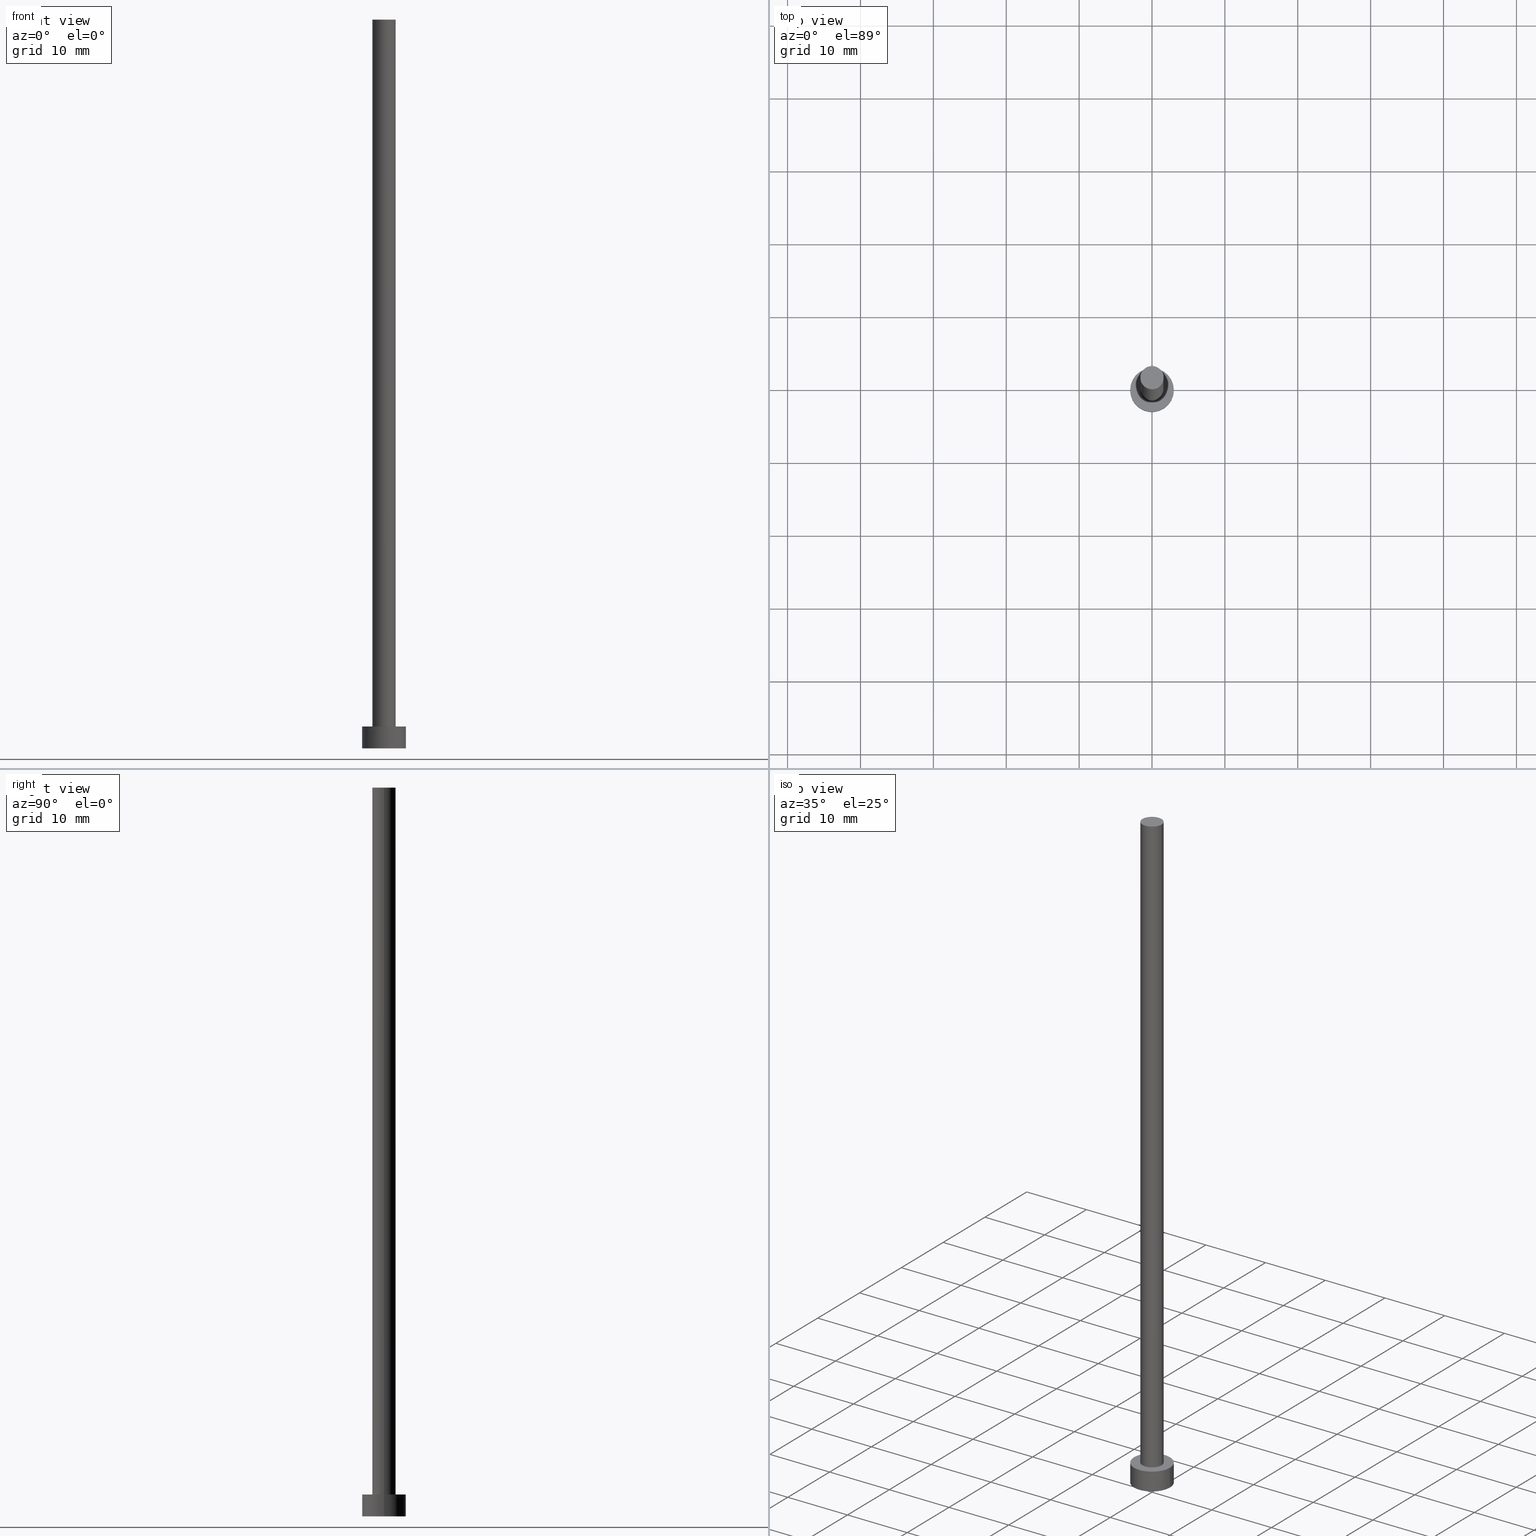
[diagram: canonical four-view strip — front | top / right | iso, engineering-drawing reading convention]
A machine part, canonical four-view strip (front | top / right | iso — engineering-drawing reading convention). The complete STEP part file that produces these views, byte-faithful:
ISO-10303-21;
HEADER;
FILE_DESCRIPTION (( 'STEP AP203' ),
    '1' );
FILE_NAME ('37a4.STEP',
    '2023-02-13T16:26:03',
    ( '' ),
    ( '' ),
    'SwSTEP 2.0',
    'SolidWorks 2019',
    '' );
FILE_SCHEMA (( 'CONFIG_CONTROL_DESIGN' ));
ENDSEC;

DATA;
#1 = APPROVAL_PERSON_ORGANIZATION ( #247, #146, #121 ) ;
#2 = DATE_AND_TIME ( #46, #10 ) ;
#3 = COORDINATED_UNIVERSAL_TIME_OFFSET ( 1, 0, .AHEAD. ) ;
#4 = EDGE_CURVE ( 'NONE', #70, #14, #220, .T. ) ;
#5 = LOCAL_TIME ( 17, 26, 3.000000000000000000, #7 ) ;
#6 = DIRECTION ( 'NONE',  ( 1.000000000000000000, 0.000000000000000000, 0.000000000000000000 ) ) ;
#7 = COORDINATED_UNIVERSAL_TIME_OFFSET ( 1, 0, .AHEAD. ) ;
#8 = EDGE_LOOP ( 'NONE', ( #102, #66, #67, #204 ) ) ;
#9 = ORIENTED_EDGE ( 'NONE', *, *, #4, .T. ) ;
#10 = LOCAL_TIME ( 17, 26, 3.000000000000000000, #3 ) ;
#11 = APPROVAL_STATUS ( 'not_yet_approved' ) ;
#12 = CARTESIAN_POINT ( 'NONE',  ( -3.000000000000000444, 0.000000000000000000, 0.000000000000000000 ) ) ;
#13 = APPLICATION_CONTEXT ( 'configuration controlled 3d designs of mechanical parts and assemblies' ) ;
#14 = VERTEX_POINT ( 'NONE', #197 ) ;
#15 = DIRECTION ( 'NONE',  ( 1.000000000000000000, 0.000000000000000000, 0.000000000000000000 ) ) ;
#16 = CARTESIAN_POINT ( 'NONE',  ( 0.000000000000000000, 0.000000000000000000, 3.000000000000000000 ) ) ;
#17 = CIRCLE ( 'NONE', #30, 3.000000000000000444 ) ;
#18 = APPLICATION_PROTOCOL_DEFINITION ( 'international standard', 'config_control_design', 1994, #13 ) ;
#19 = PRODUCT_DEFINITION_SHAPE ( 'NONE', 'NONE',  #241 ) ;
#20 = CARTESIAN_POINT ( 'NONE',  ( 1.600000000000000089, 1.959434878635764737E-16, 3.000000000000000000 ) ) ;
#21 = CARTESIAN_POINT ( 'NONE',  ( 0.000000000000000000, 0.000000000000000000, 100.0000000000000000 ) ) ;
#22 = AXIS2_PLACEMENT_3D ( 'NONE', #215, #185, #73 ) ;
#23 = CC_DESIGN_SECURITY_CLASSIFICATION ( #151, ( #56 ) ) ;
#24 = CC_DESIGN_PERSON_AND_ORGANIZATION_ASSIGNMENT ( #81, #172, ( #245 ) ) ;
#25 = DATE_AND_TIME ( #216, #5 ) ;
#26 = PERSON_AND_ORGANIZATION_ROLE ( 'classification_officer' ) ;
#27 = CIRCLE ( 'NONE', #89, 3.000000000000000444 ) ;
#28 = APPROVAL_PERSON_ORGANIZATION ( #237, #74, #94 ) ;
#29 = DIRECTION ( 'NONE',  ( 1.000000000000000000, 0.000000000000000000, -0.000000000000000000 ) ) ;
#30 = AXIS2_PLACEMENT_3D ( 'NONE', #62, #141, #232 ) ;
#31 = ORIENTED_EDGE ( 'NONE', *, *, #248, .T. ) ;
#32 = CC_DESIGN_PERSON_AND_ORGANIZATION_ASSIGNMENT ( #65, #133, ( #56 ) ) ;
#33 = MANIFOLD_SOLID_BREP ( 'P�idat vysunut�m3', #109 ) ;
#34 = ORIENTED_EDGE ( 'NONE', *, *, #124, .T. ) ;
#35 = EDGE_LOOP ( 'NONE', ( #193, #116 ) ) ;
#36 = EDGE_CURVE ( 'NONE', #155, #243, #27, .T. ) ;
#37 = DATE_TIME_ROLE ( 'classification_date' ) ;
#38 = CARTESIAN_POINT ( 'NONE',  ( -1.600000000000000089, 0.000000000000000000, 100.0000000000000000 ) ) ;
#39 = AXIS2_PLACEMENT_3D ( 'NONE', #55, #119, #205 ) ;
#40 = DIRECTION ( 'NONE',  ( -0.000000000000000000, -0.000000000000000000, -1.000000000000000000 ) ) ;
#41 = VECTOR ( 'NONE', #48, 1000.000000000000000 ) ;
#42 = ADVANCED_FACE ( 'NONE', ( #82 ), #240, .T. ) ;
#43 = APPROVAL_PERSON_ORGANIZATION ( #78, #131, #176 ) ;
#44 = DESIGN_CONTEXT ( 'detailed design', #203, 'design' ) ;
#45 = APPROVAL_DATE_TIME ( #25, #131 ) ;
#46 = CALENDAR_DATE ( 2023, 13, 2 ) ;
#47 = APPROVAL_DATE_TIME ( #2, #74 ) ;
#48 = DIRECTION ( 'NONE',  ( -0.000000000000000000, -0.000000000000000000, -1.000000000000000000 ) ) ;
#49 = APPROVAL_STATUS ( 'not_yet_approved' ) ;
#50 = DIRECTION ( 'NONE',  ( 0.000000000000000000, 0.000000000000000000, 1.000000000000000000 ) ) ;
#51 = DIRECTION ( 'NONE',  ( -0.000000000000000000, -0.000000000000000000, -1.000000000000000000 ) ) ;
#52 = ORIENTED_EDGE ( 'NONE', *, *, #224, .T. ) ;
#53 = ADVANCED_FACE ( 'NONE', ( #189 ), #250, .T. ) ;
#54 = VERTEX_POINT ( 'NONE', #20 ) ;
#55 = CARTESIAN_POINT ( 'NONE',  ( 0.000000000000000000, 0.000000000000000000, 3.000000000000000000 ) ) ;
#56 = PRODUCT_DEFINITION_FORMATION_WITH_SPECIFIED_SOURCE ( 'LIBOVOLN�', '', #245, .NOT_KNOWN. ) ;
#57 = CARTESIAN_POINT ( 'NONE',  ( 0.000000000000000000, 0.000000000000000000, 0.000000000000000000 ) ) ;
#58 = LINE ( 'NONE', #192, #201 ) ;
#59 = AXIS2_PLACEMENT_3D ( 'NONE', #184, #93, #138 ) ;
#60 = DIRECTION ( 'NONE',  ( 0.000000000000000000, 0.000000000000000000, 1.000000000000000000 ) ) ;
#61 = DIRECTION ( 'NONE',  ( -0.000000000000000000, -0.000000000000000000, -1.000000000000000000 ) ) ;
#62 = CARTESIAN_POINT ( 'NONE',  ( 0.000000000000000000, 0.000000000000000000, 3.000000000000000000 ) ) ;
#63 = CARTESIAN_POINT ( 'NONE',  ( 3.000000000000000444, 3.673940397442060361E-16, 0.000000000000000000 ) ) ;
#64 = AXIS2_PLACEMENT_3D ( 'NONE', #135, #51, #178 ) ;
#65 = PERSON_AND_ORGANIZATION ( #180, #144 ) ;
#66 = ORIENTED_EDGE ( 'NONE', *, *, #255, .T. ) ;
#67 = ORIENTED_EDGE ( 'NONE', *, *, #104, .T. ) ;
#68 = CIRCLE ( 'NONE', #59, 1.600000000000000089 ) ;
#69 = ORIENTED_EDGE ( 'NONE', *, *, #4, .F. ) ;
#70 = VERTEX_POINT ( 'NONE', #38 ) ;
#71 = APPROVAL_DATE_TIME ( #159, #146 ) ;
#72 = FACE_OUTER_BOUND ( 'NONE', #134, .T. ) ;
#73 = DIRECTION ( 'NONE',  ( 1.000000000000000000, 0.000000000000000000, -0.000000000000000000 ) ) ;
#74 = APPROVAL ( #49, 'NEUR�EN�' ) ;
#75 = DIRECTION ( 'NONE',  ( -0.000000000000000000, -0.000000000000000000, -1.000000000000000000 ) ) ;
#76 = DIRECTION ( 'NONE',  ( -1.000000000000000000, 0.000000000000000000, 0.000000000000000000 ) ) ;
#77 = EDGE_CURVE ( 'NONE', #222, #113, #191, .T. ) ;
#78 = PERSON_AND_ORGANIZATION ( #180, #144 ) ;
#79 = APPROVAL_STATUS ( 'not_yet_approved' ) ;
#80 = AXIS2_PLACEMENT_3D ( 'NONE', #16, #164, #15 ) ;
#81 = PERSON_AND_ORGANIZATION ( #180, #144 ) ;
#82 = FACE_OUTER_BOUND ( 'NONE', #183, .T. ) ;
#83 = PERSON_AND_ORGANIZATION ( #180, #144 ) ;
#84 = AXIS2_PLACEMENT_3D ( 'NONE', #95, #50, #29 ) ;
#85 = CALENDAR_DATE ( 2023, 13, 2 ) ;
#86 = ORIENTED_EDGE ( 'NONE', *, *, #255, .F. ) ;
#87 = LINE ( 'NONE', #161, #142 ) ;
#88 = SHAPE_DEFINITION_REPRESENTATION ( #19, #211 ) ;
#89 = AXIS2_PLACEMENT_3D ( 'NONE', #96, #174, #6 ) ;
#90 = LOCAL_TIME ( 17, 26, 3.000000000000000000, #153 ) ;
#91 = DIRECTION ( 'NONE',  ( 0.000000000000000000, 0.000000000000000000, 1.000000000000000000 ) ) ;
#92 = DIRECTION ( 'NONE',  ( 1.000000000000000000, 0.000000000000000000, 0.000000000000000000 ) ) ;
#93 = DIRECTION ( 'NONE',  ( 0.000000000000000000, 0.000000000000000000, 1.000000000000000000 ) ) ;
#94 = APPROVAL_ROLE ( '' ) ;
#95 = CARTESIAN_POINT ( 'NONE',  ( 0.000000000000000000, 0.000000000000000000, 0.000000000000000000 ) ) ;
#96 = CARTESIAN_POINT ( 'NONE',  ( 0.000000000000000000, 0.000000000000000000, 0.000000000000000000 ) ) ;
#97 = PERSON_AND_ORGANIZATION ( #180, #144 ) ;
#98 = ORIENTED_EDGE ( 'NONE', *, *, #251, .T. ) ;
#99 = ORIENTED_EDGE ( 'NONE', *, *, #199, .F. ) ;
#100 = CALENDAR_DATE ( 2023, 13, 2 ) ;
#101 = VECTOR ( 'NONE', #61, 1000.000000000000000 ) ;
#102 = ORIENTED_EDGE ( 'NONE', *, *, #77, .F. ) ;
#103 = CARTESIAN_POINT ( 'NONE',  ( 0.000000000000000000, 0.000000000000000000, 3.000000000000000000 ) ) ;
#104 = EDGE_CURVE ( 'NONE', #243, #155, #147, .T. ) ;
#105 = DIRECTION ( 'NONE',  ( 1.000000000000000000, 0.000000000000000000, 0.000000000000000000 ) ) ;
#106 =( NAMED_UNIT ( * ) PLANE_ANGLE_UNIT ( ) SI_UNIT ( $, .RADIAN. ) );
#107 = DIRECTION ( 'NONE',  ( 1.000000000000000000, 0.000000000000000000, 0.000000000000000000 ) ) ;
#108 = ADVANCED_FACE ( 'NONE', ( #186 ), #122, .T. ) ;
#109 = CLOSED_SHELL ( 'NONE', ( #108, #53, #194, #120, #154, #42, #238 ) ) ;
#110 =( GEOMETRIC_REPRESENTATION_CONTEXT ( 3 ) GLOBAL_UNCERTAINTY_ASSIGNED_CONTEXT ( ( #168 ) ) GLOBAL_UNIT_ASSIGNED_CONTEXT ( ( #143, #106, #169 ) ) REPRESENTATION_CONTEXT ( 'NONE', 'WORKASPACE' ) );
#111 = PERSON_AND_ORGANIZATION ( #180, #144 ) ;
#112 = CALENDAR_DATE ( 2023, 13, 2 ) ;
#113 = VERTEX_POINT ( 'NONE', #236 ) ;
#114 = COORDINATED_UNIVERSAL_TIME_OFFSET ( 1, 0, .AHEAD. ) ;
#115 = ORIENTED_EDGE ( 'NONE', *, *, #208, .T. ) ;
#116 = ORIENTED_EDGE ( 'NONE', *, *, #248, .F. ) ;
#117 = ORIENTED_EDGE ( 'NONE', *, *, #210, .T. ) ;
#118 = ORIENTED_EDGE ( 'NONE', *, *, #199, .T. ) ;
#119 = DIRECTION ( 'NONE',  ( -0.000000000000000000, -0.000000000000000000, -1.000000000000000000 ) ) ;
#120 = ADVANCED_FACE ( 'NONE', ( #213, #129 ), #149, .T. ) ;
#121 = APPROVAL_ROLE ( '' ) ;
#122 = CYLINDRICAL_SURFACE ( 'NONE', #123, 1.600000000000000089 ) ;
#123 = AXIS2_PLACEMENT_3D ( 'NONE', #187, #233, #76 ) ;
#124 = EDGE_CURVE ( 'NONE', #202, #70, #68, .T. ) ;
#125 = LOCAL_TIME ( 17, 26, 3.000000000000000000, #114 ) ;
#126 = LINE ( 'NONE', #128, #101 ) ;
#127 = CARTESIAN_POINT ( 'NONE',  ( 0.000000000000000000, 0.000000000000000000, 3.000000000000000000 ) ) ;
#128 = CARTESIAN_POINT ( 'NONE',  ( -3.000000000000000444, 0.000000000000000000, 3.000000000000000000 ) ) ;
#129 = FACE_OUTER_BOUND ( 'NONE', #225, .T. ) ;
#130 = AXIS2_PLACEMENT_3D ( 'NONE', #21, #91, #107 ) ;
#131 = APPROVAL ( #79, 'NEUR�EN�' ) ;
#132 = MECHANICAL_CONTEXT ( 'NONE', #13, 'mechanical' ) ;
#133 = PERSON_AND_ORGANIZATION_ROLE ( 'design_supplier' ) ;
#134 = EDGE_LOOP ( 'NONE', ( #86, #246, #52, #158 ) ) ;
#135 = CARTESIAN_POINT ( 'NONE',  ( 0.000000000000000000, 0.000000000000000000, 100.0000000000000000 ) ) ;
#136 = EDGE_LOOP ( 'NONE', ( #98, #34 ) ) ;
#137 = ORIENTED_EDGE ( 'NONE', *, *, #104, .F. ) ;
#138 = DIRECTION ( 'NONE',  ( 1.000000000000000000, 0.000000000000000000, 0.000000000000000000 ) ) ;
#139 = AXIS2_PLACEMENT_3D ( 'NONE', #103, #206, #140 ) ;
#140 = DIRECTION ( 'NONE',  ( -1.000000000000000000, 0.000000000000000000, 0.000000000000000000 ) ) ;
#141 = DIRECTION ( 'NONE',  ( 0.000000000000000000, 0.000000000000000000, 1.000000000000000000 ) ) ;
#142 = VECTOR ( 'NONE', #75, 1000.000000000000000 ) ;
#143 =( LENGTH_UNIT ( ) NAMED_UNIT ( * ) SI_UNIT ( .MILLI., .METRE. ) );
#144 = ORGANIZATION ( 'NEUR�EN�', 'NEUR�EN�', '' ) ;
#145 = CARTESIAN_POINT ( 'NONE',  ( 1.600000000000000089, 1.959434878635764737E-16, 100.0000000000000000 ) ) ;
#146 = APPROVAL ( #11, 'NEUR�EN�' ) ;
#147 = CIRCLE ( 'NONE', #242, 3.000000000000000444 ) ;
#148 = PERSON_AND_ORGANIZATION_ROLE ( 'creator' ) ;
#149 = PLANE ( 'NONE',  #22 ) ;
#150 = DATE_AND_TIME ( #112, #125 ) ;
#151 = SECURITY_CLASSIFICATION ( '', '', #217 ) ;
#152 = ORIENTED_EDGE ( 'NONE', *, *, #77, .T. ) ;
#153 = COORDINATED_UNIVERSAL_TIME_OFFSET ( 1, 0, .AHEAD. ) ;
#154 = ADVANCED_FACE ( 'NONE', ( #173 ), #218, .F. ) ;
#155 = VERTEX_POINT ( 'NONE', #12 ) ;
#156 = ORIENTED_EDGE ( 'NONE', *, *, #124, .F. ) ;
#157 = CC_DESIGN_APPROVAL ( #74, ( #241 ) ) ;
#158 = ORIENTED_EDGE ( 'NONE', *, *, #36, .T. ) ;
#159 = DATE_AND_TIME ( #85, #171 ) ;
#160 = CC_DESIGN_PERSON_AND_ORGANIZATION_ASSIGNMENT ( #83, #148, ( #56 ) ) ;
#161 = CARTESIAN_POINT ( 'NONE',  ( 1.600000000000000089, 1.959434878635764737E-16, 100.0000000000000000 ) ) ;
#162 = AXIS2_PLACEMENT_3D ( 'NONE', #165, #60, #92 ) ;
#163 = CC_DESIGN_PERSON_AND_ORGANIZATION_ASSIGNMENT ( #111, #26, ( #151 ) ) ;
#164 = DIRECTION ( 'NONE',  ( 0.000000000000000000, 0.000000000000000000, 1.000000000000000000 ) ) ;
#165 = CARTESIAN_POINT ( 'NONE',  ( 0.000000000000000000, 0.000000000000000000, 0.000000000000000000 ) ) ;
#166 = AXIS2_PLACEMENT_3D ( 'NONE', #127, #252, #235 ) ;
#167 = DIRECTION ( 'NONE',  ( 1.000000000000000000, 0.000000000000000000, 0.000000000000000000 ) ) ;
#168 = UNCERTAINTY_MEASURE_WITH_UNIT (LENGTH_MEASURE( 1.000000000000000082E-05 ), #143, 'distance_accuracy_value', 'NONE');
#169 =( NAMED_UNIT ( * ) SI_UNIT ( $, .STERADIAN. ) SOLID_ANGLE_UNIT ( ) );
#170 = CIRCLE ( 'NONE', #209, 1.600000000000000089 ) ;
#171 = LOCAL_TIME ( 17, 26, 3.000000000000000000, #207 ) ;
#172 = PERSON_AND_ORGANIZATION_ROLE ( 'design_owner' ) ;
#173 = FACE_OUTER_BOUND ( 'NONE', #179, .T. ) ;
#174 = DIRECTION ( 'NONE',  ( 0.000000000000000000, 0.000000000000000000, 1.000000000000000000 ) ) ;
#175 = AXIS2_PLACEMENT_3D ( 'NONE', #229, #253, #212 ) ;
#176 = APPROVAL_ROLE ( '' ) ;
#177 = CC_DESIGN_PERSON_AND_ORGANIZATION_ASSIGNMENT ( #97, #195, ( #241 ) ) ;
#178 = DIRECTION ( 'NONE',  ( -1.000000000000000000, 0.000000000000000000, 0.000000000000000000 ) ) ;
#179 = EDGE_LOOP ( 'NONE', ( #181, #137 ) ) ;
#180 = PERSON ( 'NEUR�EN�', 'NEUR�EN�', 'NEUR�EN�', ('NEUR�EN�'), ('NEUR�EN�'), ('NEUR�EN�') ) ;
#181 = ORIENTED_EDGE ( 'NONE', *, *, #36, .F. ) ;
#182 = DATE_AND_TIME ( #100, #90 ) ;
#183 = EDGE_LOOP ( 'NONE', ( #99, #239, #9, #115 ) ) ;
#184 = CARTESIAN_POINT ( 'NONE',  ( 0.000000000000000000, 0.000000000000000000, 100.0000000000000000 ) ) ;
#185 = DIRECTION ( 'NONE',  ( 0.000000000000000000, 0.000000000000000000, 1.000000000000000000 ) ) ;
#186 = FACE_OUTER_BOUND ( 'NONE', #223, .T. ) ;
#187 = CARTESIAN_POINT ( 'NONE',  ( 0.000000000000000000, 0.000000000000000000, 100.0000000000000000 ) ) ;
#188 = FACE_OUTER_BOUND ( 'NONE', #136, .T. ) ;
#189 = FACE_OUTER_BOUND ( 'NONE', #8, .T. ) ;
#190 = CARTESIAN_POINT ( 'NONE',  ( 0.000000000000000000, 0.000000000000000000, 3.000000000000000000 ) ) ;
#191 = CIRCLE ( 'NONE', #80, 3.000000000000000444 ) ;
#192 = CARTESIAN_POINT ( 'NONE',  ( 3.000000000000000444, 3.673940397442060361E-16, 3.000000000000000000 ) ) ;
#193 = ORIENTED_EDGE ( 'NONE', *, *, #208, .F. ) ;
#194 = ADVANCED_FACE ( 'NONE', ( #72 ), #226, .T. ) ;
#195 = PERSON_AND_ORGANIZATION_ROLE ( 'creator' ) ;
#196 = CIRCLE ( 'NONE', #130, 1.600000000000000089 ) ;
#197 = CARTESIAN_POINT ( 'NONE',  ( -1.600000000000000089, 0.000000000000000000, 3.000000000000000000 ) ) ;
#198 = DATE_TIME_ROLE ( 'creation_date' ) ;
#199 = EDGE_CURVE ( 'NONE', #202, #54, #87, .T. ) ;
#200 = CARTESIAN_POINT ( 'NONE',  ( -1.600000000000000089, 0.000000000000000000, 100.0000000000000000 ) ) ;
#201 = VECTOR ( 'NONE', #40, 1000.000000000000000 ) ;
#202 = VERTEX_POINT ( 'NONE', #145 ) ;
#203 = APPLICATION_CONTEXT ( 'configuration controlled 3d designs of mechanical parts and assemblies' ) ;
#204 = ORIENTED_EDGE ( 'NONE', *, *, #224, .F. ) ;
#205 = DIRECTION ( 'NONE',  ( -1.000000000000000000, 0.000000000000000000, 0.000000000000000000 ) ) ;
#206 = DIRECTION ( 'NONE',  ( -0.000000000000000000, -0.000000000000000000, -1.000000000000000000 ) ) ;
#207 = COORDINATED_UNIVERSAL_TIME_OFFSET ( 1, 0, .AHEAD. ) ;
#208 = EDGE_CURVE ( 'NONE', #14, #54, #170, .T. ) ;
#209 = AXIS2_PLACEMENT_3D ( 'NONE', #190, #234, #167 ) ;
#210 = EDGE_CURVE ( 'NONE', #113, #222, #17, .T. ) ;
#211 = ADVANCED_BREP_SHAPE_REPRESENTATION ( '37a4', ( #33, #162 ), #110 ) ;
#212 = DIRECTION ( 'NONE',  ( 1.000000000000000000, 0.000000000000000000, -0.000000000000000000 ) ) ;
#213 = FACE_BOUND ( 'NONE', #35, .T. ) ;
#214 = PLANE ( 'NONE',  #175 ) ;
#215 = CARTESIAN_POINT ( 'NONE',  ( 0.000000000000000000, 0.000000000000000000, 3.000000000000000000 ) ) ;
#216 = CALENDAR_DATE ( 2023, 13, 2 ) ;
#217 = SECURITY_CLASSIFICATION_LEVEL ( 'unclassified' ) ;
#218 = PLANE ( 'NONE',  #84 ) ;
#219 = PRODUCT_RELATED_PRODUCT_CATEGORY ( 'detail', '', ( #245 ) ) ;
#220 = LINE ( 'NONE', #200, #41 ) ;
#221 = APPLICATION_PROTOCOL_DEFINITION ( 'international standard', 'config_control_design', 1994, #203 ) ;
#222 = VERTEX_POINT ( 'NONE', #254 ) ;
#223 = EDGE_LOOP ( 'NONE', ( #156, #118, #31, #69 ) ) ;
#224 = EDGE_CURVE ( 'NONE', #113, #155, #126, .T. ) ;
#225 = EDGE_LOOP ( 'NONE', ( #117, #152 ) ) ;
#226 = CYLINDRICAL_SURFACE ( 'NONE', #39, 3.000000000000000444 ) ;
#227 = CC_DESIGN_DATE_AND_TIME_ASSIGNMENT ( #182, #37, ( #151 ) ) ;
#228 = DIRECTION ( 'NONE',  ( 0.000000000000000000, 0.000000000000000000, 1.000000000000000000 ) ) ;
#229 = CARTESIAN_POINT ( 'NONE',  ( 0.000000000000000000, 0.000000000000000000, 100.0000000000000000 ) ) ;
#230 = CC_DESIGN_APPROVAL ( #131, ( #56 ) ) ;
#231 = CC_DESIGN_DATE_AND_TIME_ASSIGNMENT ( #150, #198, ( #241 ) ) ;
#232 = DIRECTION ( 'NONE',  ( 1.000000000000000000, 0.000000000000000000, 0.000000000000000000 ) ) ;
#233 = DIRECTION ( 'NONE',  ( -0.000000000000000000, -0.000000000000000000, -1.000000000000000000 ) ) ;
#234 = DIRECTION ( 'NONE',  ( 0.000000000000000000, 0.000000000000000000, 1.000000000000000000 ) ) ;
#235 = DIRECTION ( 'NONE',  ( 1.000000000000000000, 0.000000000000000000, 0.000000000000000000 ) ) ;
#236 = CARTESIAN_POINT ( 'NONE',  ( -3.000000000000000444, 0.000000000000000000, 3.000000000000000000 ) ) ;
#237 = PERSON_AND_ORGANIZATION ( #180, #144 ) ;
#238 = ADVANCED_FACE ( 'NONE', ( #188 ), #214, .T. ) ;
#239 = ORIENTED_EDGE ( 'NONE', *, *, #251, .F. ) ;
#240 = CYLINDRICAL_SURFACE ( 'NONE', #64, 1.600000000000000089 ) ;
#241 = PRODUCT_DEFINITION ( 'NEZN�M�', '', #56, #44 ) ;
#242 = AXIS2_PLACEMENT_3D ( 'NONE', #57, #228, #105 ) ;
#243 = VERTEX_POINT ( 'NONE', #63 ) ;
#244 = CIRCLE ( 'NONE', #166, 1.600000000000000089 ) ;
#245 = PRODUCT ( '37a4', '37a4', '', ( #132 ) ) ;
#246 = ORIENTED_EDGE ( 'NONE', *, *, #210, .F. ) ;
#247 = PERSON_AND_ORGANIZATION ( #180, #144 ) ;
#248 = EDGE_CURVE ( 'NONE', #54, #14, #244, .T. ) ;
#249 = CC_DESIGN_APPROVAL ( #146, ( #151 ) ) ;
#250 = CYLINDRICAL_SURFACE ( 'NONE', #139, 3.000000000000000444 ) ;
#251 = EDGE_CURVE ( 'NONE', #70, #202, #196, .T. ) ;
#252 = DIRECTION ( 'NONE',  ( 0.000000000000000000, 0.000000000000000000, 1.000000000000000000 ) ) ;
#253 = DIRECTION ( 'NONE',  ( 0.000000000000000000, 0.000000000000000000, 1.000000000000000000 ) ) ;
#254 = CARTESIAN_POINT ( 'NONE',  ( 3.000000000000000444, 3.673940397442060361E-16, 3.000000000000000000 ) ) ;
#255 = EDGE_CURVE ( 'NONE', #222, #243, #58, .T. ) ;
ENDSEC;
END-ISO-10303-21;
